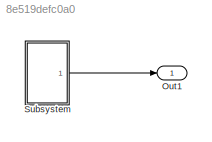
MODEL slx_8e519defc0a0
KIND model
BLOCK [Outport] Out1
  IconDisplay = Port number
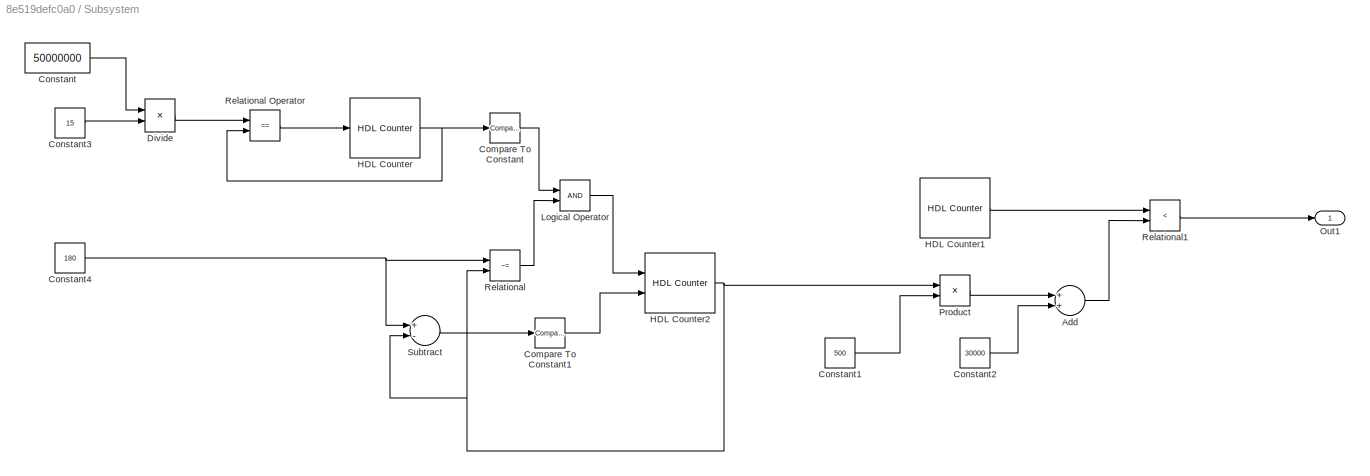
BLOCK [SubSystem] Subsystem
  Ports = [0, 1]
  RequestExecContextInheritance = off
  TreatAsAtomicUnit = on
BLOCK [Sum] Subsystem/Add
  InputSameDT = off
  OutDataTypeStr = Inherit: Inherit via internal rule
  Ports = [2, 1]
  SaturateOnIntegerOverflow = off
BLOCK [Reference] Subsystem/Compare To Constant  REF=simulink/Logic and Bit
Operations/Compare
To Constant
  OutDataTypeStr = boolean
  Ports = [1, 1]
  SourceBlock = simulink/Logic and Bit\nOperations/Compare\nTo Constant
  SourceType = Compare To Constant
  ZeroCross = on
  const = 0
  relop = ==
BLOCK [Reference] Subsystem/Compare To Constant1  REF=simulink/Logic and Bit
Operations/Compare
To Constant
  OutDataTypeStr = boolean
  Ports = [1, 1]
  SourceBlock = simulink/Logic and Bit\nOperations/Compare\nTo Constant
  SourceType = Compare To Constant
  ZeroCross = on
  const = 0
  relop = >=
BLOCK [Constant] Subsystem/Constant
  OutDataTypeStr = int32
  Value = 50000000
BLOCK [Constant] Subsystem/Constant1
  OutDataTypeStr = int32
  Value = 500
BLOCK [Constant] Subsystem/Constant2
  OutDataTypeStr = int32
  Value = 30000
BLOCK [Constant] Subsystem/Constant3
  OutDataTypeStr = int8
  SampleTime = 1
  Value = 15
BLOCK [Constant] Subsystem/Constant4
  OutDataTypeStr = int32
  SampleTime = 1
  Value = 180
BLOCK [Product] Subsystem/Divide
  InputSameDT = off
  Inputs = */
  OutDataTypeStr = int32
  Ports = [2, 1]
BLOCK [Reference] Subsystem/HDL Counter  REF=hdlsllib/HDL Operations/HDL Counter
  CountDataType = Unsigned
  CountDirPort = off
  CountEnbPort = off
  CountFracLen = 0
  CountFrom = 0
  CountFromType = Initial value
  CountInit = 0
  CountLoadPort = off
  CountMax = 100
  CountResetPort = on
  CountSampTime = 1
  CountStep = 1
  CountType = Free running
  CountWordLen = 32
  Ports = [1, 1]
  SourceBlock = hdlsllib/HDL Operations/HDL Counter
  SourceType = HDL Counter
BLOCK [Reference] Subsystem/HDL Counter1  REF=hdlsllib/HDL Operations/HDL Counter
  CountDataType = Unsigned
  CountDirPort = off
  CountEnbPort = off
  CountFracLen = 0
  CountFrom = 0
  CountFromType = Initial value
  CountInit = 0
  CountLoadPort = off
  CountMax = 1000000
  CountResetPort = off
  CountSampTime = 1
  CountStep = 1
  CountType = Count limited
  CountWordLen = 32
  Ports = [0, 1]
  SourceBlock = hdlsllib/HDL Operations/HDL Counter
  SourceType = HDL Counter
BLOCK [Reference] Subsystem/HDL Counter2  REF=hdlsllib/HDL Operations/HDL Counter
  CountDataType = Unsigned
  CountDirPort = on
  CountEnbPort = on
  CountFracLen = 0
  CountFrom = 0
  CountFromType = Specify
  CountInit = 90
  CountLoadPort = off
  CountMax = 180
  CountResetPort = off
  CountSampTime = 1
  CountStep = 1
  CountType = Count limited
  CountWordLen = 32
  Ports = [2, 1]
  SourceBlock = hdlsllib/HDL Operations/HDL Counter
  SourceType = HDL Counter
BLOCK [Logic] Subsystem/Logical Operator
  AllPortsSameDT = off
  OutDataTypeStr = boolean
  Ports = [2, 1]
BLOCK [Outport] Subsystem/Out1
  IconDisplay = Port number
BLOCK [Product] Subsystem/Product
  InputSameDT = off
  OutDataTypeStr = Inherit: Inherit via internal rule
  Ports = [2, 1]
  RndMeth = Floor
  SaturateOnIntegerOverflow = off
BLOCK [RelationalOperator] Subsystem/Relational
  InputSameDT = off
  Operator = ~=
  OutDataTypeStr = boolean
  Ports = [2, 1]
BLOCK [RelationalOperator] Subsystem/Relational Operator
  InputSameDT = off
  Operator = ==
  OutDataTypeStr = boolean
  Ports = [2, 1]
BLOCK [RelationalOperator] Subsystem/Relational1
  InputSameDT = off
  Operator = <
  OutDataTypeStr = boolean
  Ports = [2, 1]
BLOCK [Sum] Subsystem/Subtract
  InputSameDT = off
  Inputs = +-
  OutDataTypeStr = Inherit: Inherit via internal rule
  Ports = [2, 1]
  SaturateOnIntegerOverflow = off
LINE Subsystem/Add:1 -> Subsystem/Relational1:2
LINE Subsystem/Compare To Constant1:1 -> Subsystem/HDL Counter2:2
LINE Subsystem/Compare To Constant:1 -> Subsystem/Logical Operator:1
LINE Subsystem/Constant1:1 -> Subsystem/Product:2
LINE Subsystem/Constant2:1 -> Subsystem/Add:2
LINE Subsystem/Constant3:1 -> Subsystem/Divide:2
NET Subsystem/Constant4:1 -> Subsystem/Relational:1, Subsystem/Subtract:1
LINE Subsystem/Constant:1 -> Subsystem/Divide:1
LINE Subsystem/Divide:1 -> Subsystem/Relational Operator:1
LINE Subsystem/HDL Counter1:1 -> Subsystem/Relational1:1
NET Subsystem/HDL Counter2:1 -> Subsystem/Product:1, Subsystem/Relational:2, Subsystem/Subtract:2
NET Subsystem/HDL Counter:1 -> Subsystem/Compare To Constant:1, Subsystem/Relational Operator:2
LINE Subsystem/Logical Operator:1 -> Subsystem/HDL Counter2:1
LINE Subsystem/Product:1 -> Subsystem/Add:1
LINE Subsystem/Relational Operator:1 -> Subsystem/HDL Counter:1
LINE Subsystem/Relational1:1 -> Subsystem/Out1:1
LINE Subsystem/Relational:1 -> Subsystem/Logical Operator:2
LINE Subsystem/Subtract:1 -> Subsystem/Compare To Constant1:1
LINE Subsystem:1 -> Out1:1
note: NET lines group one-source signal fan-out (src -> all destinations, sorted); 1:1 wires keep LINE
